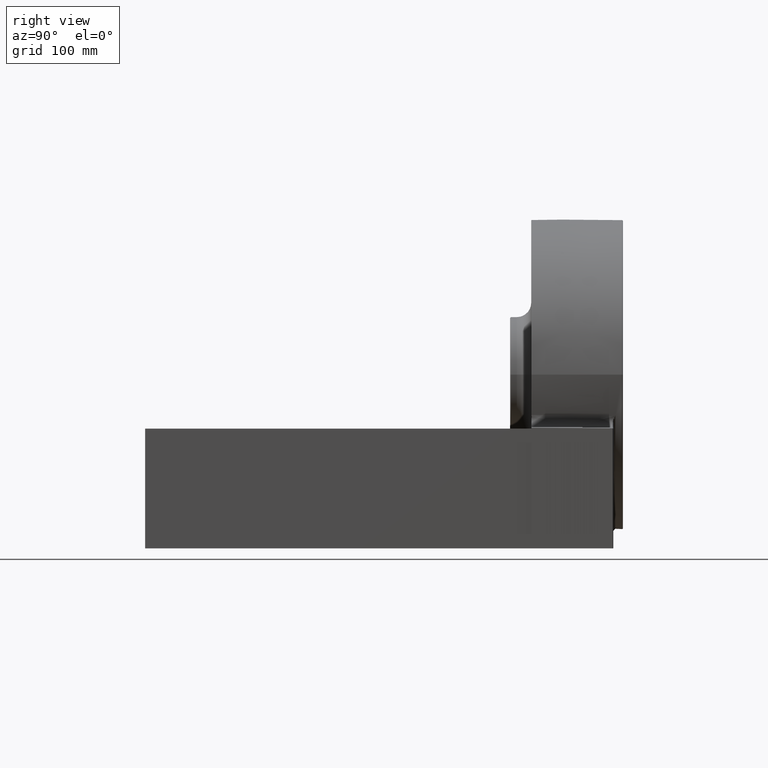
[diagram: clean part render]
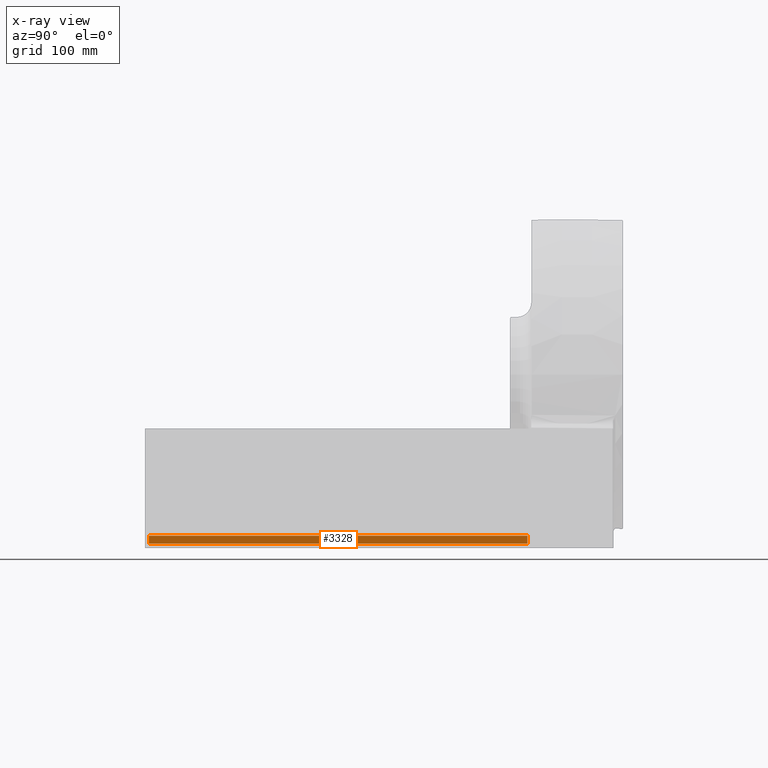
[diagram: x-ray — body ghosted, one internal face saturated and labeled with its STEP entity id]
A machine part, right view, then the same camera in x-ray: the body is ghosted and one INTERNAL B-rep face — a face not visible from any outside direction — is saturated and labeled: STEP entity #3328.
In plain terms, the highlighted planar face has unit normal (-1, 0, 0).
Its self-contained STEP definition (entity closure, byte-faithful):
#241 = VECTOR ( 'NONE', #2702, 1000.000000000000000 ) ;
#264 = DIRECTION ( 'NONE',  ( -1.848892746611746419E-32, 1.000000000000000000, -4.771491437219376826E-32 ) ) ;
#318 = LINE ( 'NONE', #2075, #4528 ) ;
#607 = CARTESIAN_POINT ( 'NONE',  ( 4.000000000000025757, 396.0000000000000568, 2.081668171172168513E-14 ) ) ;
#612 = VECTOR ( 'NONE', #264, 1000.000000000000000 ) ;
#715 = VERTEX_POINT ( 'NONE', #4144 ) ;
#889 = FACE_OUTER_BOUND ( 'NONE', #2544, .T. ) ;
#925 = ORIENTED_EDGE ( 'NONE', *, *, #3624, .T. ) ;
#1005 = CARTESIAN_POINT ( 'NONE',  ( 4.000000000000001776, 4.000000000000003553, -110.9999999999999858 ) ) ;
#1095 = CARTESIAN_POINT ( 'NONE',  ( 4.000000000000000000, 4.000000000000003553, -119.0000000000000000 ) ) ;
#1232 = VECTOR ( 'NONE', #3692, 1000.000000000000000 ) ;
#1281 = CARTESIAN_POINT ( 'NONE',  ( 4.000000000000000000, 4.000000000000003553, -119.0000000000000000 ) ) ;
#1442 = VERTEX_POINT ( 'NONE', #5153 ) ;
#1540 = VERTEX_POINT ( 'NONE', #1281 ) ;
#1813 = CARTESIAN_POINT ( 'NONE',  ( 4.000000000000001776, 396.0000000000000568, -110.9999999999999858 ) ) ;
#1888 = DIRECTION ( 'NONE',  ( -1.000000000000000000, 1.232595164407830535E-32, 2.168404344971008375E-16 ) ) ;
#1909 = AXIS2_PLACEMENT_3D ( 'NONE', #2321, #1888, #3071 ) ;
#2075 = CARTESIAN_POINT ( 'NONE',  ( 4.000000000000001776, 4.000000000000003553, -110.9999999999999858 ) ) ;
#2321 = CARTESIAN_POINT ( 'NONE',  ( 4.000000000000025757, 0.0000000000000000000, 2.081668171172168513E-14 ) ) ;
#2481 = LINE ( 'NONE', #1095, #612 ) ;
#2544 = EDGE_LOOP ( 'NONE', ( #925, #4343, #3229, #3474 ) ) ;
#2702 = DIRECTION ( 'NONE',  ( -2.168404344971008375E-16, 5.674271098650892537E-32, -1.000000000000000000 ) ) ;
#2852 = EDGE_CURVE ( 'NONE', #1442, #1540, #5368, .T. ) ;
#3032 = EDGE_CURVE ( 'NONE', #1540, #715, #2481, .T. ) ;
#3071 = DIRECTION ( 'NONE',  ( 2.168404344971008375E-16, -5.674271098650892537E-32, 1.000000000000000000 ) ) ;
#3229 = ORIENTED_EDGE ( 'NONE', *, *, #2852, .T. ) ;
#3328 = ADVANCED_FACE ( 'NONE', ( #889 ), #4870, .F. ) ;
#3474 = ORIENTED_EDGE ( 'NONE', *, *, #3032, .T. ) ;
#3624 = EDGE_CURVE ( 'NONE', #715, #5346, #4540, .T. ) ;
#3692 = DIRECTION ( 'NONE',  ( 2.168404344971008375E-16, -9.093308543426790825E-17, 1.000000000000000000 ) ) ;
#3837 = DIRECTION ( 'NONE',  ( 1.848892746611746419E-32, -1.000000000000000000, 4.771491437219376826E-32 ) ) ;
#3949 = EDGE_CURVE ( 'NONE', #5346, #1442, #318, .T. ) ;
#4144 = CARTESIAN_POINT ( 'NONE',  ( 4.000000000000000000, 396.0000000000000568, -119.0000000000000000 ) ) ;
#4343 = ORIENTED_EDGE ( 'NONE', *, *, #3949, .T. ) ;
#4528 = VECTOR ( 'NONE', #3837, 1000.000000000000000 ) ;
#4540 = LINE ( 'NONE', #607, #1232 ) ;
#4870 = PLANE ( 'NONE',  #1909 ) ;
#5153 = CARTESIAN_POINT ( 'NONE',  ( 4.000000000000001776, 4.000000000000003553, -110.9999999999999858 ) ) ;
#5346 = VERTEX_POINT ( 'NONE', #1813 ) ;
#5368 = LINE ( 'NONE', #1005, #241 ) ;